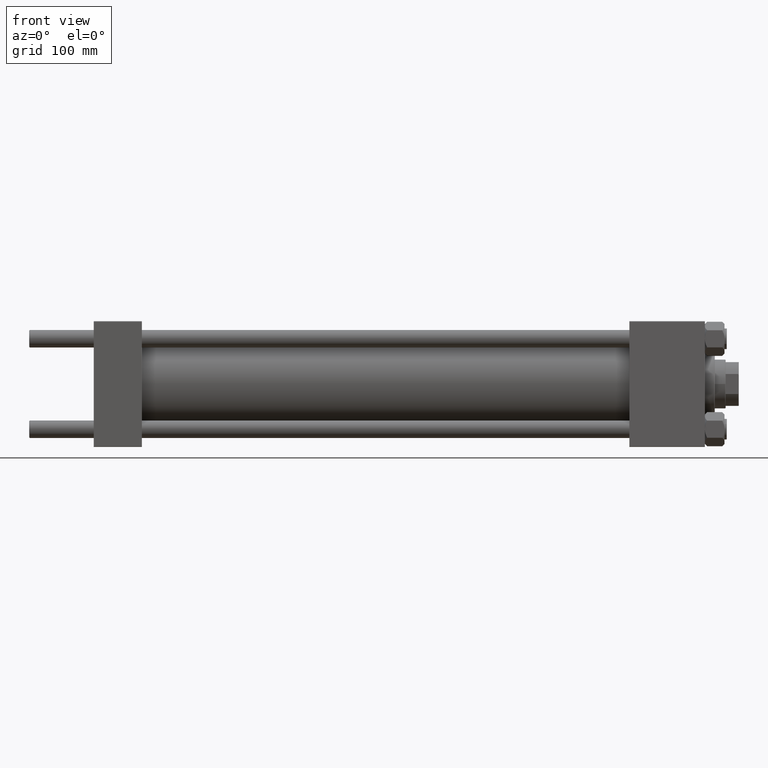
[diagram: clean part render]
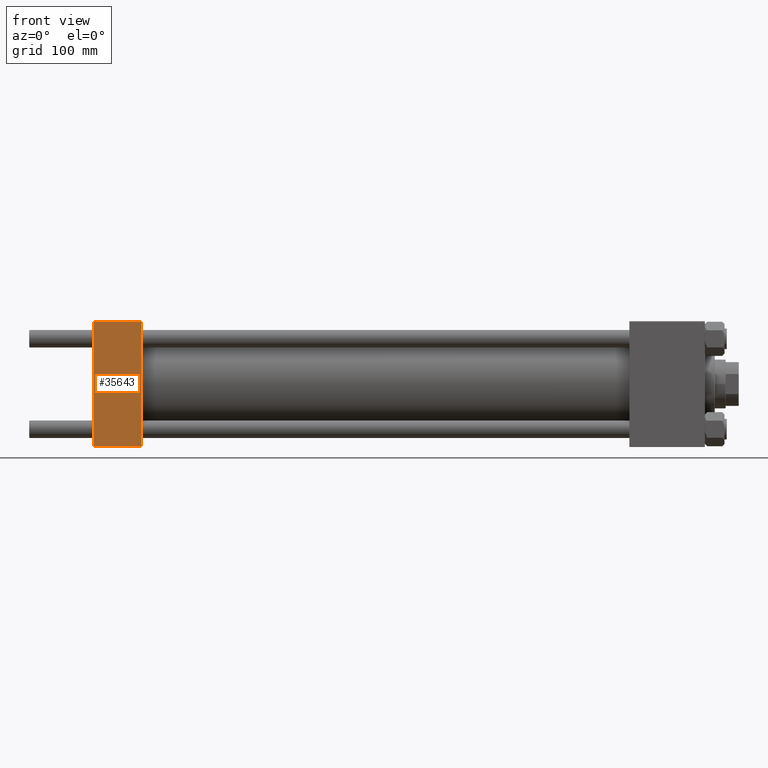
[diagram: same view with one face highlighted and labeled with its STEP entity id]
A machine part, front view. The second image highlights one B-rep face of the part: STEP entity #35643.
In plain terms, the highlighted planar face has unit normal (0, 1, 0).
Its self-contained STEP definition (entity closure, byte-faithful):
#264 = DIRECTION ( 'NONE',  ( 0.000000000000000000, -0.000000000000000000, 1.000000000000000000 ) ) ;
#821 = VERTEX_POINT ( 'NONE', #21262 ) ;
#825 = DIRECTION ( 'NONE',  ( -1.000000000000000000, 0.000000000000000000, 0.000000000000000000 ) ) ;
#2227 = VECTOR ( 'NONE', #31087, 1000.000000000000000 ) ;
#3128 = EDGE_LOOP ( 'NONE', ( #27578, #24127, #41556, #27345 ) ) ;
#6202 = DIRECTION ( 'NONE',  ( 1.000000000000000000, 0.000000000000000000, 0.000000000000000000 ) ) ;
#9528 = CARTESIAN_POINT ( 'NONE',  ( 44.00000000000000000, -57.50000000000000711, -57.00000000000000711 ) ) ;
#9947 = VERTEX_POINT ( 'NONE', #20377 ) ;
#12886 = VERTEX_POINT ( 'NONE', #13074 ) ;
#13074 = CARTESIAN_POINT ( 'NONE',  ( 44.00000000000000000, -57.50000000000000711, -57.00000000000000711 ) ) ;
#15768 = DIRECTION ( 'NONE',  ( -0.000000000000000000, 1.000000000000000000, 0.000000000000000000 ) ) ;
#15777 = CARTESIAN_POINT ( 'NONE',  ( 0.000000000000000000, -57.50000000000000711, 57.49999999999999289 ) ) ;
#16899 = EDGE_CURVE ( 'NONE', #31874, #12886, #21449, .T. ) ;
#20377 = CARTESIAN_POINT ( 'NONE',  ( 44.00000000000000000, -57.50000000000000711, 57.00000000000000711 ) ) ;
#20886 = EDGE_CURVE ( 'NONE', #9947, #12886, #38954, .T. ) ;
#21262 = CARTESIAN_POINT ( 'NONE',  ( 0.000000000000000000, -57.50000000000000711, 57.00000000000000711 ) ) ;
#21449 = LINE ( 'NONE', #9528, #28882 ) ;
#23495 = EDGE_CURVE ( 'NONE', #821, #31874, #38858, .T. ) ;
#24127 = ORIENTED_EDGE ( 'NONE', *, *, #16899, .T. ) ;
#24681 = LINE ( 'NONE', #47531, #49859 ) ;
#26792 = CARTESIAN_POINT ( 'NONE',  ( 0.000000000000000000, -57.50000000000000711, -57.00000000000000711 ) ) ;
#27345 = ORIENTED_EDGE ( 'NONE', *, *, #43248, .T. ) ;
#27578 = ORIENTED_EDGE ( 'NONE', *, *, #23495, .T. ) ;
#28882 = VECTOR ( 'NONE', #6202, 1000.000000000000000 ) ;
#30726 = PLANE ( 'NONE',  #39880 ) ;
#31087 = DIRECTION ( 'NONE',  ( 0.000000000000000000, 0.000000000000000000, -1.000000000000000000 ) ) ;
#31874 = VERTEX_POINT ( 'NONE', #26792 ) ;
#32081 = CARTESIAN_POINT ( 'NONE',  ( 44.00000000000000000, -57.50000000000000711, 57.49999999999999289 ) ) ;
#35643 = ADVANCED_FACE ( 'NONE', ( #42651 ), #30726, .F. ) ;
#38858 = LINE ( 'NONE', #15777, #41274 ) ;
#38954 = LINE ( 'NONE', #32081, #2227 ) ;
#39880 = AXIS2_PLACEMENT_3D ( 'NONE', #49774, #15768, #264 ) ;
#41274 = VECTOR ( 'NONE', #46735, 1000.000000000000000 ) ;
#41556 = ORIENTED_EDGE ( 'NONE', *, *, #20886, .F. ) ;
#42651 = FACE_OUTER_BOUND ( 'NONE', #3128, .T. ) ;
#43248 = EDGE_CURVE ( 'NONE', #9947, #821, #24681, .T. ) ;
#46735 = DIRECTION ( 'NONE',  ( 0.000000000000000000, 0.000000000000000000, -1.000000000000000000 ) ) ;
#47531 = CARTESIAN_POINT ( 'NONE',  ( 44.00000000000000000, -57.50000000000000711, 57.00000000000000711 ) ) ;
#49774 = CARTESIAN_POINT ( 'NONE',  ( 44.00000000000000000, -57.50000000000000711, 57.49999999999999289 ) ) ;
#49859 = VECTOR ( 'NONE', #825, 1000.000000000000000 ) ;